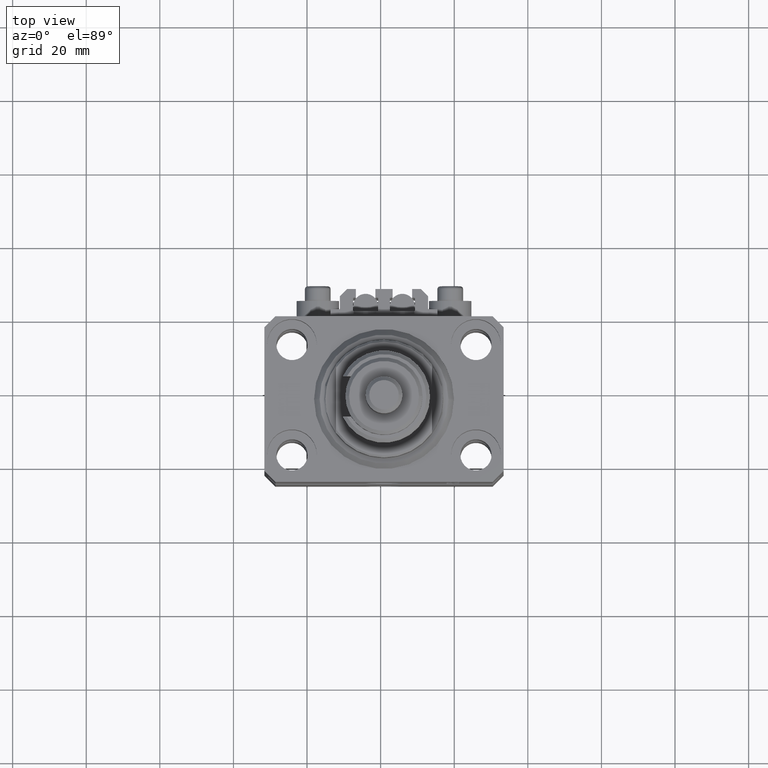
[diagram: clean part render]
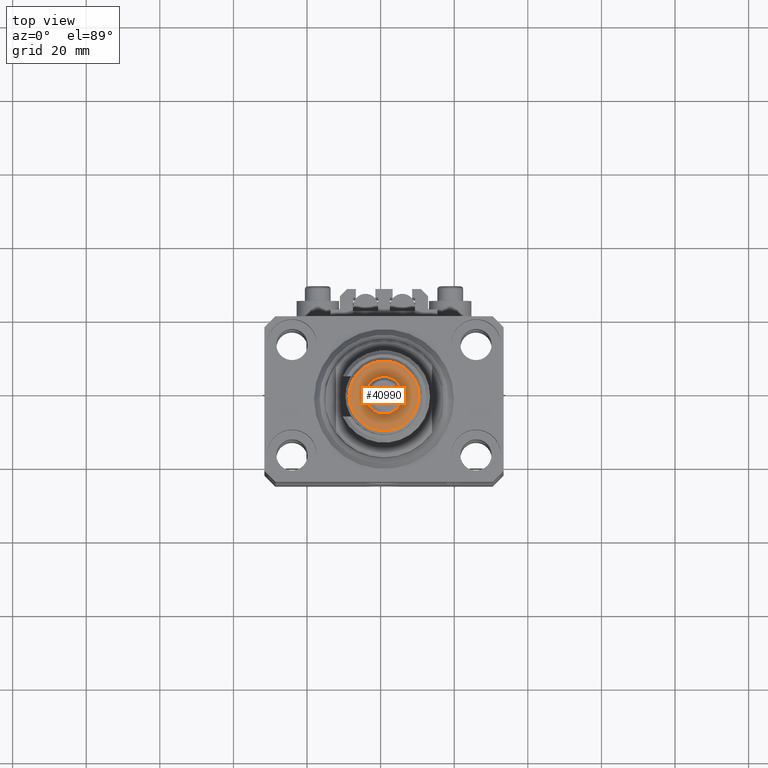
[diagram: same view with one face highlighted and labeled with its STEP entity id]
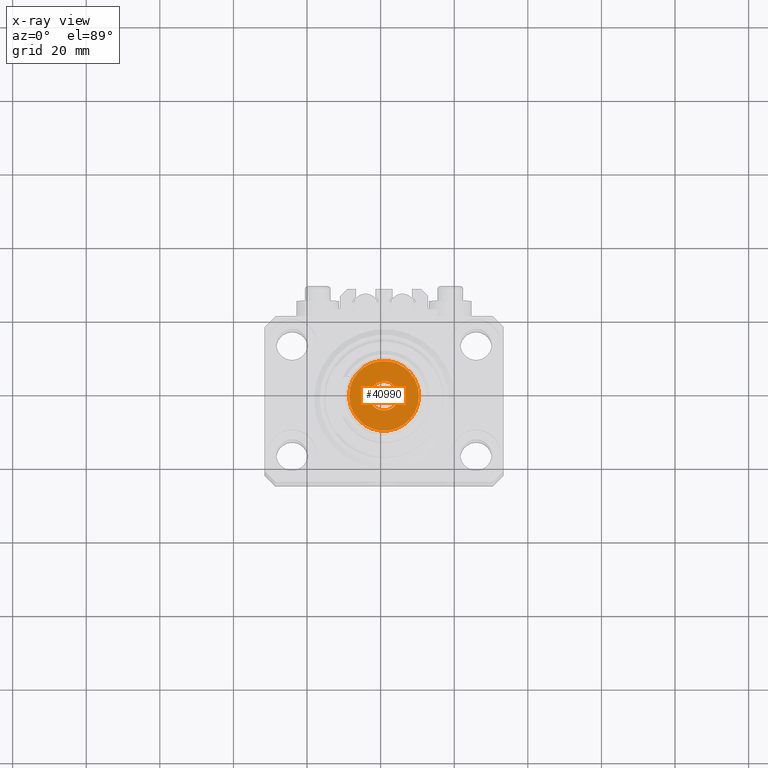
[diagram: x-ray of the same camera — body ghosted, the highlighted face saturated]
A machine part, top view. The second image highlights one B-rep face of the part: STEP entity #40990.
The next image is the same camera in x-ray: the body ghosted, the highlighted face saturated — about 0% of this face is hidden behind the body in this view.
In plain terms, the highlighted planar face has unit normal (0, 0, 1).
Its self-contained STEP definition (entity closure, byte-faithful):
#592 = EDGE_LOOP ( 'NONE', ( #39836, #29814 ) ) ;
#1074 = DIRECTION ( 'NONE',  ( 1.000000000000000000, 0.000000000000000000, 0.000000000000000000 ) ) ;
#3049 = CARTESIAN_POINT ( 'NONE',  ( -9.500000000000001776, 0.000000000000000000, 19.00000000000000000 ) ) ;
#3926 = AXIS2_PLACEMENT_3D ( 'NONE', #44989, #32660, #28797 ) ;
#4290 = DIRECTION ( 'NONE',  ( 0.000000000000000000, 0.000000000000000000, 1.000000000000000000 ) ) ;
#6358 = EDGE_CURVE ( 'NONE', #22453, #44114, #26027, .T. ) ;
#6708 = CARTESIAN_POINT ( 'NONE',  ( 0.000000000000000000, 0.000000000000000000, 19.00000000000000000 ) ) ;
#6851 = VERTEX_POINT ( 'NONE', #36584 ) ;
#8150 = FACE_OUTER_BOUND ( 'NONE', #36789, .T. ) ;
#9155 = AXIS2_PLACEMENT_3D ( 'NONE', #37372, #44578, #9398 ) ;
#9398 = DIRECTION ( 'NONE',  ( 1.000000000000000000, 0.000000000000000000, 0.000000000000000000 ) ) ;
#10817 = DIRECTION ( 'NONE',  ( 1.000000000000000000, 0.000000000000000000, 0.000000000000000000 ) ) ;
#10871 = DIRECTION ( 'NONE',  ( 0.000000000000000000, 0.000000000000000000, 1.000000000000000000 ) ) ;
#16822 = CIRCLE ( 'NONE', #17652, 9.500000000000001776 ) ;
#17652 = AXIS2_PLACEMENT_3D ( 'NONE', #49909, #10871, #1074 ) ;
#18797 = CARTESIAN_POINT ( 'NONE',  ( 4.000000000000000000, 4.898587196589412829E-16, 19.00000000000000000 ) ) ;
#19480 = AXIS2_PLACEMENT_3D ( 'NONE', #6708, #49856, #10817 ) ;
#22453 = VERTEX_POINT ( 'NONE', #39378 ) ;
#23615 = VERTEX_POINT ( 'NONE', #18797 ) ;
#26027 = CIRCLE ( 'NONE', #19480, 9.500000000000001776 ) ;
#26054 = CIRCLE ( 'NONE', #3926, 4.000000000000000000 ) ;
#27649 = PLANE ( 'NONE',  #30064 ) ;
#27946 = EDGE_CURVE ( 'NONE', #6851, #23615, #45341, .T. ) ;
#28797 = DIRECTION ( 'NONE',  ( 1.000000000000000000, 0.000000000000000000, 0.000000000000000000 ) ) ;
#29814 = ORIENTED_EDGE ( 'NONE', *, *, #50024, .F. ) ;
#30064 = AXIS2_PLACEMENT_3D ( 'NONE', #43338, #4290, #44081 ) ;
#32660 = DIRECTION ( 'NONE',  ( 0.000000000000000000, 0.000000000000000000, 1.000000000000000000 ) ) ;
#36584 = CARTESIAN_POINT ( 'NONE',  ( -4.000000000000000000, 0.000000000000000000, 19.00000000000000000 ) ) ;
#36789 = EDGE_LOOP ( 'NONE', ( #43432, #37808 ) ) ;
#37372 = CARTESIAN_POINT ( 'NONE',  ( 0.000000000000000000, 0.000000000000000000, 19.00000000000000000 ) ) ;
#37808 = ORIENTED_EDGE ( 'NONE', *, *, #6358, .T. ) ;
#39225 = FACE_BOUND ( 'NONE', #592, .T. ) ;
#39378 = CARTESIAN_POINT ( 'NONE',  ( 9.500000000000001776, 1.224646799147353256E-15, 19.00000000000000000 ) ) ;
#39836 = ORIENTED_EDGE ( 'NONE', *, *, #27946, .F. ) ;
#40990 = ADVANCED_FACE ( 'NONE', ( #8150, #39225 ), #27649, .T. ) ;
#43338 = CARTESIAN_POINT ( 'NONE',  ( 0.000000000000000000, 0.000000000000000000, 19.00000000000000000 ) ) ;
#43432 = ORIENTED_EDGE ( 'NONE', *, *, #45269, .T. ) ;
#44081 = DIRECTION ( 'NONE',  ( 1.000000000000000000, 0.000000000000000000, -0.000000000000000000 ) ) ;
#44114 = VERTEX_POINT ( 'NONE', #3049 ) ;
#44578 = DIRECTION ( 'NONE',  ( 0.000000000000000000, 0.000000000000000000, 1.000000000000000000 ) ) ;
#44989 = CARTESIAN_POINT ( 'NONE',  ( 0.000000000000000000, 0.000000000000000000, 19.00000000000000000 ) ) ;
#45269 = EDGE_CURVE ( 'NONE', #44114, #22453, #16822, .T. ) ;
#45341 = CIRCLE ( 'NONE', #9155, 4.000000000000000000 ) ;
#49856 = DIRECTION ( 'NONE',  ( 0.000000000000000000, 0.000000000000000000, 1.000000000000000000 ) ) ;
#49909 = CARTESIAN_POINT ( 'NONE',  ( 0.000000000000000000, 0.000000000000000000, 19.00000000000000000 ) ) ;
#50024 = EDGE_CURVE ( 'NONE', #23615, #6851, #26054, .T. ) ;